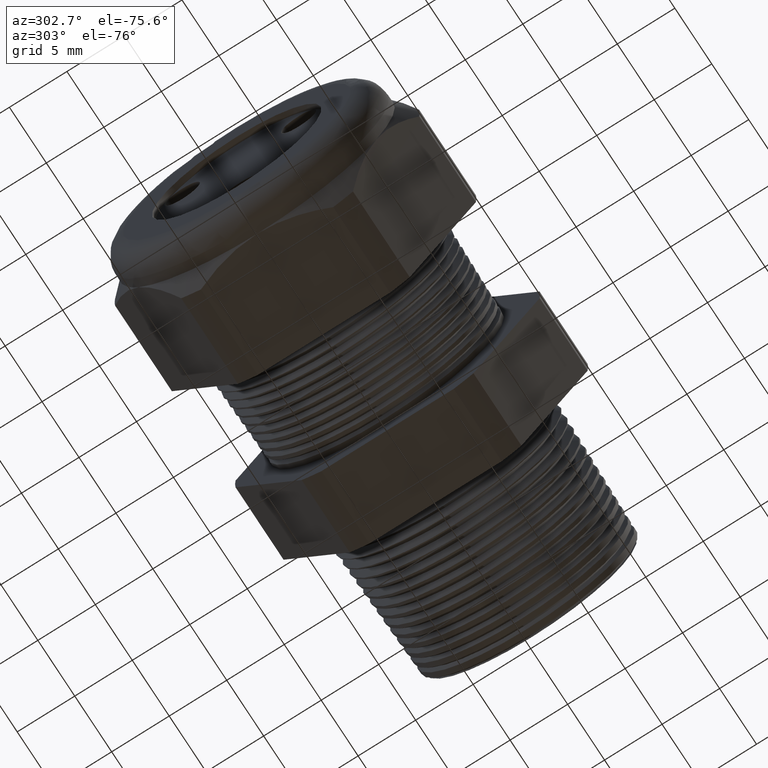
[diagram: clean part render]
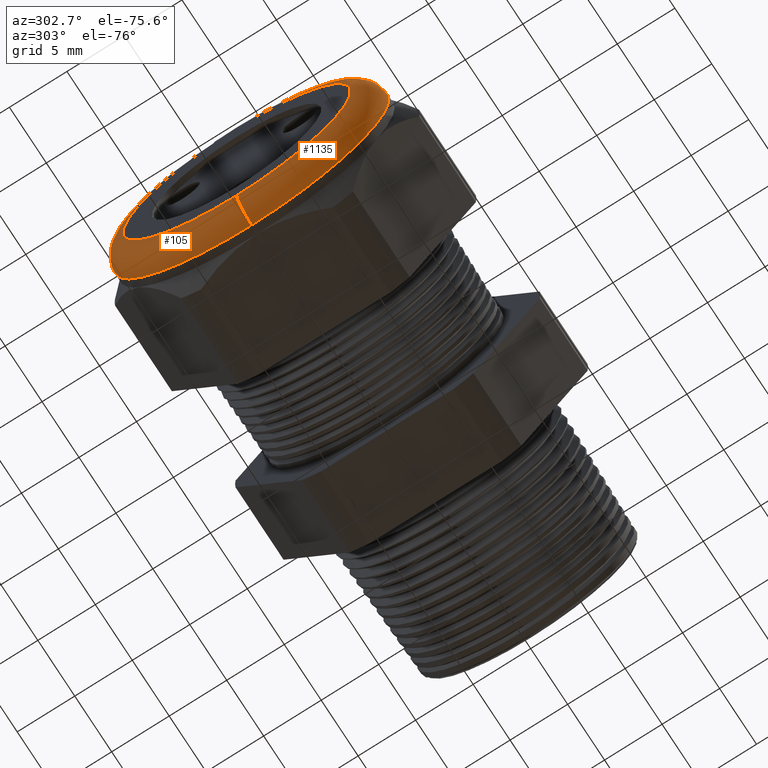
[diagram: same view with one multi-face feature highlighted, each face labeled with its STEP entity id]
A machine part, auxiliary view. The highlighted faces form ONE feature: a constant-radius fillet chain: 2 tangent blend faces with common blend radius 2.032 mm. The faces share edges in the B-rep.
Their STEP definitions:
[1] entity #105 (Torus):
#35 = VERTEX_POINT ( 'NONE', #1799 ) ;
#36 = EDGE_LOOP ( 'NONE', ( #99, #82, #79, #63 ) ) ;
#40 = VERTEX_POINT ( 'NONE', #1794 ) ;
#59 = EDGE_CURVE ( 'NONE', #35, #78, #1887, .T. ) ;
#63 = ORIENTED_EDGE ( 'NONE', *, *, #59, .F. ) ;
#71 = EDGE_CURVE ( 'NONE', #78, #77, #1867, .T. ) ;
#77 = VERTEX_POINT ( 'NONE', #1908 ) ;
#78 = VERTEX_POINT ( 'NONE', #1907 ) ;
#79 = ORIENTED_EDGE ( 'NONE', *, *, #71, .F. ) ;
#82 = ORIENTED_EDGE ( 'NONE', *, *, #83, .T. ) ;
#83 = EDGE_CURVE ( 'NONE', #40, #77, #1899, .T. ) ;
#98 = EDGE_CURVE ( 'NONE', #40, #35, #1937, .T. ) ;
#99 = ORIENTED_EDGE ( 'NONE', *, *, #98, .F. ) ;
#105 = ADVANCED_FACE ( 'NONE', ( #1981 ), #1980, .T. ) ;
#1794 = CARTESIAN_POINT ( 'NONE',  ( -1.290000000000000500, 0.0000000000000000000, -0.4699999999999999200 ) ) ;
#1799 = CARTESIAN_POINT ( 'NONE',  ( -1.290000000000000500, 5.755839955992558400E-017, 0.4699999999999999200 ) ) ;
#1863 = DIRECTION ( 'NONE',  ( 0.0000000000000000000, 0.0000000000000000000, 1.000000000000000000 ) ) ;
#1864 = DIRECTION ( 'NONE',  ( -1.000000000000000000, 0.0000000000000000000, 0.0000000000000000000 ) ) ;
#1865 = CARTESIAN_POINT ( 'NONE',  ( -1.370000000000000300, 0.0000000000000000000, 0.0000000000000000000 ) ) ;
#1866 = AXIS2_PLACEMENT_3D ( 'NONE', #1865, #1864, #1863 ) ;
#1867 = CIRCLE ( 'NONE', #1866, 0.3899999999999999600 ) ;
#1883 = DIRECTION ( 'NONE',  ( 0.0000000000000000000, 0.0000000000000000000, -1.000000000000000000 ) ) ;
#1884 = DIRECTION ( 'NONE',  ( 0.0000000000000000000, -1.000000000000000000, 0.0000000000000000000 ) ) ;
#1885 = CARTESIAN_POINT ( 'NONE',  ( -1.290000000000000500, 0.0000000000000000000, 0.3899999999999999600 ) ) ;
#1886 = AXIS2_PLACEMENT_3D ( 'NONE', #1885, #1884, #1883 ) ;
#1887 = CIRCLE ( 'NONE', #1886, 0.07999999999999996000 ) ;
#1896 = DIRECTION ( 'NONE',  ( 0.0000000000000000000, -1.224646799147353900E-016, 1.000000000000000000 ) ) ;
#1897 = DIRECTION ( 'NONE',  ( 0.0000000000000000000, 1.000000000000000000, 1.224646799147353200E-016 ) ) ;
#1898 = AXIS2_PLACEMENT_3D ( 'NONE', #1905, #1897, #1896 ) ;
#1899 = CIRCLE ( 'NONE', #1898, 0.07999999999999996000 ) ;
#1905 = CARTESIAN_POINT ( 'NONE',  ( -1.290000000000000500, 4.776122516674676800E-017, -0.3899999999999999600 ) ) ;
#1907 = CARTESIAN_POINT ( 'NONE',  ( -1.370000000000000300, 0.0000000000000000000, 0.3899999999999999600 ) ) ;
#1908 = CARTESIAN_POINT ( 'NONE',  ( -1.370000000000000300, 5.265981236333617600E-017, -0.3899999999999999600 ) ) ;
#1923 = CARTESIAN_POINT ( 'NONE',  ( -1.290000000000000500, 0.0000000000000000000, 0.0000000000000000000 ) ) ;
#1933 = DIRECTION ( 'NONE',  ( 0.0000000000000000000, 0.0000000000000000000, 1.000000000000000000 ) ) ;
#1934 = DIRECTION ( 'NONE',  ( 1.000000000000000000, 0.0000000000000000000, 0.0000000000000000000 ) ) ;
#1935 = CARTESIAN_POINT ( 'NONE',  ( -1.290000000000000500, 0.0000000000000000000, 0.0000000000000000000 ) ) ;
#1936 = AXIS2_PLACEMENT_3D ( 'NONE', #1935, #1934, #1933 ) ;
#1937 = CIRCLE ( 'NONE', #1936, 0.4699999999999999200 ) ;
#1977 = DIRECTION ( 'NONE',  ( 0.0000000000000000000, 0.0000000000000000000, 1.000000000000000000 ) ) ;
#1978 = DIRECTION ( 'NONE',  ( -1.000000000000000000, 0.0000000000000000000, 0.0000000000000000000 ) ) ;
#1979 = AXIS2_PLACEMENT_3D ( 'NONE', #1923, #1978, #1977 ) ;
#1980 = TOROIDAL_SURFACE ( 'NONE', #1979, 0.3899999999999999600, 0.08000000000000000200 ) ;
#1981 = FACE_OUTER_BOUND ( 'NONE', #36, .T. ) ;
[2] entity #1135 (Torus):
#35 = VERTEX_POINT ( 'NONE', #1799 ) ;
#40 = VERTEX_POINT ( 'NONE', #1794 ) ;
#59 = EDGE_CURVE ( 'NONE', #35, #78, #1887, .T. ) ;
#77 = VERTEX_POINT ( 'NONE', #1908 ) ;
#78 = VERTEX_POINT ( 'NONE', #1907 ) ;
#83 = EDGE_CURVE ( 'NONE', #40, #77, #1899, .T. ) ;
#982 = EDGE_CURVE ( 'NONE', #77, #78, #3550, .T. ) ;
#1041 = EDGE_CURVE ( 'NONE', #35, #40, #3639, .T. ) ;
#1135 = ADVANCED_FACE ( 'NONE', ( #3813 ), #3812, .T. ) ;
#1136 = EDGE_LOOP ( 'NONE', ( #1137, #1138, #1139, #1197 ) ) ;
#1137 = ORIENTED_EDGE ( 'NONE', *, *, #83, .F. ) ;
#1138 = ORIENTED_EDGE ( 'NONE', *, *, #1041, .F. ) ;
#1139 = ORIENTED_EDGE ( 'NONE', *, *, #59, .T. ) ;
#1197 = ORIENTED_EDGE ( 'NONE', *, *, #982, .F. ) ;
#1794 = CARTESIAN_POINT ( 'NONE',  ( -1.290000000000000500, 0.0000000000000000000, -0.4699999999999999200 ) ) ;
#1799 = CARTESIAN_POINT ( 'NONE',  ( -1.290000000000000500, 5.755839955992558400E-017, 0.4699999999999999200 ) ) ;
#1883 = DIRECTION ( 'NONE',  ( 0.0000000000000000000, 0.0000000000000000000, -1.000000000000000000 ) ) ;
#1884 = DIRECTION ( 'NONE',  ( 0.0000000000000000000, -1.000000000000000000, 0.0000000000000000000 ) ) ;
#1885 = CARTESIAN_POINT ( 'NONE',  ( -1.290000000000000500, 0.0000000000000000000, 0.3899999999999999600 ) ) ;
#1886 = AXIS2_PLACEMENT_3D ( 'NONE', #1885, #1884, #1883 ) ;
#1887 = CIRCLE ( 'NONE', #1886, 0.07999999999999996000 ) ;
#1896 = DIRECTION ( 'NONE',  ( 0.0000000000000000000, -1.224646799147353900E-016, 1.000000000000000000 ) ) ;
#1897 = DIRECTION ( 'NONE',  ( 0.0000000000000000000, 1.000000000000000000, 1.224646799147353200E-016 ) ) ;
#1898 = AXIS2_PLACEMENT_3D ( 'NONE', #1905, #1897, #1896 ) ;
#1899 = CIRCLE ( 'NONE', #1898, 0.07999999999999996000 ) ;
#1905 = CARTESIAN_POINT ( 'NONE',  ( -1.290000000000000500, 4.776122516674676800E-017, -0.3899999999999999600 ) ) ;
#1907 = CARTESIAN_POINT ( 'NONE',  ( -1.370000000000000300, 0.0000000000000000000, 0.3899999999999999600 ) ) ;
#1908 = CARTESIAN_POINT ( 'NONE',  ( -1.370000000000000300, 5.265981236333617600E-017, -0.3899999999999999600 ) ) ;
#3546 = DIRECTION ( 'NONE',  ( 0.0000000000000000000, 0.0000000000000000000, 1.000000000000000000 ) ) ;
#3547 = DIRECTION ( 'NONE',  ( -1.000000000000000000, 0.0000000000000000000, 0.0000000000000000000 ) ) ;
#3548 = CARTESIAN_POINT ( 'NONE',  ( -1.370000000000000300, 0.0000000000000000000, 0.0000000000000000000 ) ) ;
#3549 = AXIS2_PLACEMENT_3D ( 'NONE', #3548, #3547, #3546 ) ;
#3550 = CIRCLE ( 'NONE', #3549, 0.3899999999999999600 ) ;
#3635 = DIRECTION ( 'NONE',  ( 0.0000000000000000000, 0.0000000000000000000, 1.000000000000000000 ) ) ;
#3636 = DIRECTION ( 'NONE',  ( 1.000000000000000000, 0.0000000000000000000, 0.0000000000000000000 ) ) ;
#3637 = CARTESIAN_POINT ( 'NONE',  ( -1.290000000000000500, 0.0000000000000000000, 0.0000000000000000000 ) ) ;
#3638 = AXIS2_PLACEMENT_3D ( 'NONE', #3637, #3636, #3635 ) ;
#3639 = CIRCLE ( 'NONE', #3638, 0.4699999999999999200 ) ;
#3807 = DIRECTION ( 'NONE',  ( 0.0000000000000000000, 0.0000000000000000000, 1.000000000000000000 ) ) ;
#3808 = DIRECTION ( 'NONE',  ( -1.000000000000000000, 0.0000000000000000000, 0.0000000000000000000 ) ) ;
#3809 = CARTESIAN_POINT ( 'NONE',  ( -1.290000000000000500, 0.0000000000000000000, 0.0000000000000000000 ) ) ;
#3810 = AXIS2_PLACEMENT_3D ( 'NONE', #3809, #3808, #3807 ) ;
#3812 = TOROIDAL_SURFACE ( 'NONE', #3810, 0.3899999999999999600, 0.08000000000000000200 ) ;
#3813 = FACE_OUTER_BOUND ( 'NONE', #1136, .T. ) ;